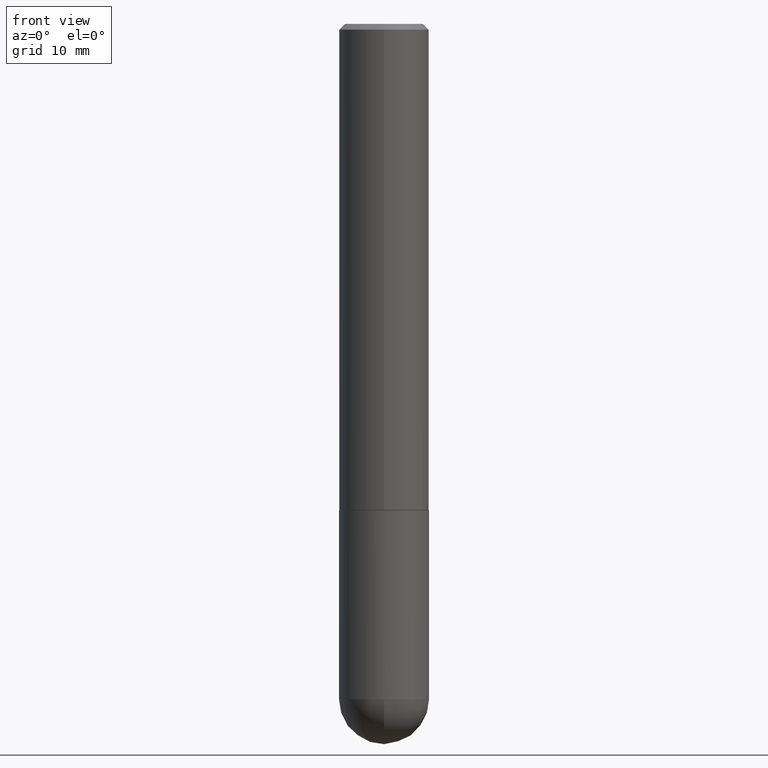
[diagram: clean part render]
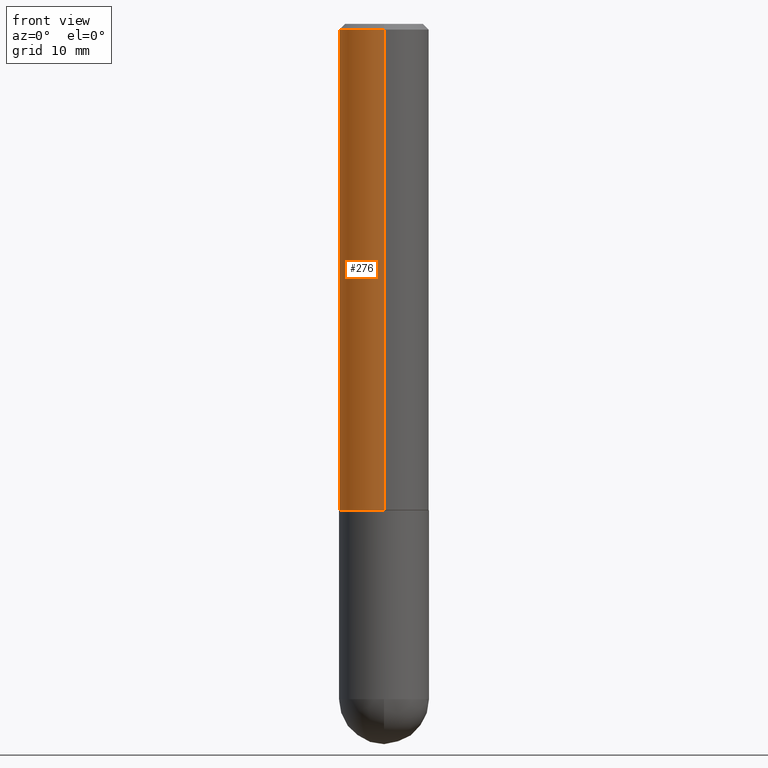
[diagram: same view with one face highlighted and labeled with its STEP entity id]
A machine part, front view. The second image highlights one B-rep face of the part: STEP entity #276.
In plain terms, the highlighted cylindrical surface (partial cylindrical patch) has radius 3.9688 mm, axis along (-0, 0, 1).
Its self-contained STEP definition (entity closure, byte-faithful):
#1 = ORIENTED_EDGE ( 'NONE', *, *, #150, .T. ) ;
#8 = CARTESIAN_POINT ( 'NONE',  ( 4.890745384892512385E-31, -6.983237958375376735E-17, -0.02000000000000003511 ) ) ;
#17 = CARTESIAN_POINT ( 'NONE',  ( 1.110223024625157329E-15, 0.1562500000000001388, -5.455654654980758660E-16 ) ) ;
#22 = CIRCLE ( 'NONE', #89, 0.1562500000000000278 ) ;
#33 = VECTOR ( 'NONE', #265, 39.37007874015748143 ) ;
#34 = CARTESIAN_POINT ( 'NONE',  ( -1.091087918388439336E-15, -0.1562500000000060785, -1.686999999999999611 ) ) ;
#43 = CARTESIAN_POINT ( 'NONE',  ( 0.000000000000000000, 0.000000000000000000, 0.000000000000000000 ) ) ;
#47 = AXIS2_PLACEMENT_3D ( 'NONE', #43, #304, #235 ) ;
#48 = VERTEX_POINT ( 'NONE', #121 ) ;
#57 = ORIENTED_EDGE ( 'NONE', *, *, #258, .T. ) ;
#78 = DIRECTION ( 'NONE',  ( -2.445372692446252549E-29, 3.491618979187682229E-15, 1.000000000000000000 ) ) ;
#89 = AXIS2_PLACEMENT_3D ( 'NONE', #8, #360, #227 ) ;
#108 = CARTESIAN_POINT ( 'NONE',  ( 1.110223024625178431E-15, 0.1562499999999943379, -1.687000000000000499 ) ) ;
#121 = CARTESIAN_POINT ( 'NONE',  ( 1.091087918388479765E-15, 0.1562499999999999722, -0.02000000000000057981 ) ) ;
#150 = EDGE_CURVE ( 'NONE', #196, #285, #387, .T. ) ;
#152 = DIRECTION ( 'NONE',  ( -6.982962677686265922E-15, -1.000000000000000000, 3.496765431890251792E-15 ) ) ;
#158 = CARTESIAN_POINT ( 'NONE',  ( 4.125343732156827639E-29, -5.890361217889620677E-15, -1.687000000000000055 ) ) ;
#166 = FACE_OUTER_BOUND ( 'NONE', #339, .T. ) ;
#170 = CYLINDRICAL_SURFACE ( 'NONE', #47, 0.1562500000000001388 ) ;
#184 = CARTESIAN_POINT ( 'NONE',  ( -1.091087918388479962E-15, -0.1562500000000001388, 5.455654654980758660E-16 ) ) ;
#195 = CARTESIAN_POINT ( 'NONE',  ( -1.071952812151801412E-15, -0.1562500000000001110, -0.01999999999999948694 ) ) ;
#196 = VERTEX_POINT ( 'NONE', #34 ) ;
#227 = DIRECTION ( 'NONE',  ( -6.982962677686266711E-15, -1.000000000000000000, 3.496765431890256131E-15 ) ) ;
#235 = DIRECTION ( 'NONE',  ( -6.982962677686265922E-15, -1.000000000000000000, 3.491618979187682623E-15 ) ) ;
#241 = ORIENTED_EDGE ( 'NONE', *, *, #302, .F. ) ;
#244 = EDGE_CURVE ( 'NONE', #48, #285, #22, .T. ) ;
#256 = CIRCLE ( 'NONE', #390, 0.1562500000000002220 ) ;
#258 = EDGE_CURVE ( 'NONE', #306, #196, #256, .T. ) ;
#265 = DIRECTION ( 'NONE',  ( -2.445372692446252549E-29, 3.491618979187682229E-15, 1.000000000000000000 ) ) ;
#266 = DIRECTION ( 'NONE',  ( -2.445372692446252269E-29, 3.491618979187682229E-15, 1.000000000000000000 ) ) ;
#276 = ADVANCED_FACE ( 'NONE', ( #166 ), #170, .T. ) ;
#285 = VERTEX_POINT ( 'NONE', #195 ) ;
#302 = EDGE_CURVE ( 'NONE', #306, #48, #396, .T. ) ;
#304 = DIRECTION ( 'NONE',  ( -2.445372692446252269E-29, 3.491618979187682229E-15, 1.000000000000000000 ) ) ;
#306 = VERTEX_POINT ( 'NONE', #108 ) ;
#339 = EDGE_LOOP ( 'NONE', ( #241, #57, #1, #380 ) ) ;
#360 = DIRECTION ( 'NONE',  ( -2.445372692446252269E-29, 3.491618979187682229E-15, 1.000000000000000000 ) ) ;
#380 = ORIENTED_EDGE ( 'NONE', *, *, #244, .F. ) ;
#387 = LINE ( 'NONE', #184, #33 ) ;
#390 = AXIS2_PLACEMENT_3D ( 'NONE', #158, #266, #152 ) ;
#395 = VECTOR ( 'NONE', #78, 39.37007874015748143 ) ;
#396 = LINE ( 'NONE', #17, #395 ) ;